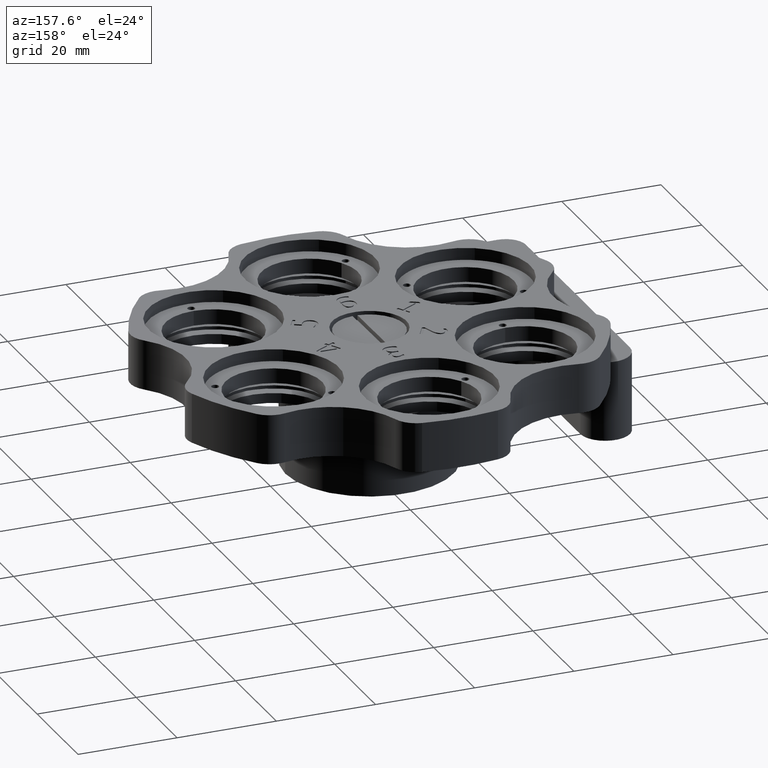
[diagram: clean part render]
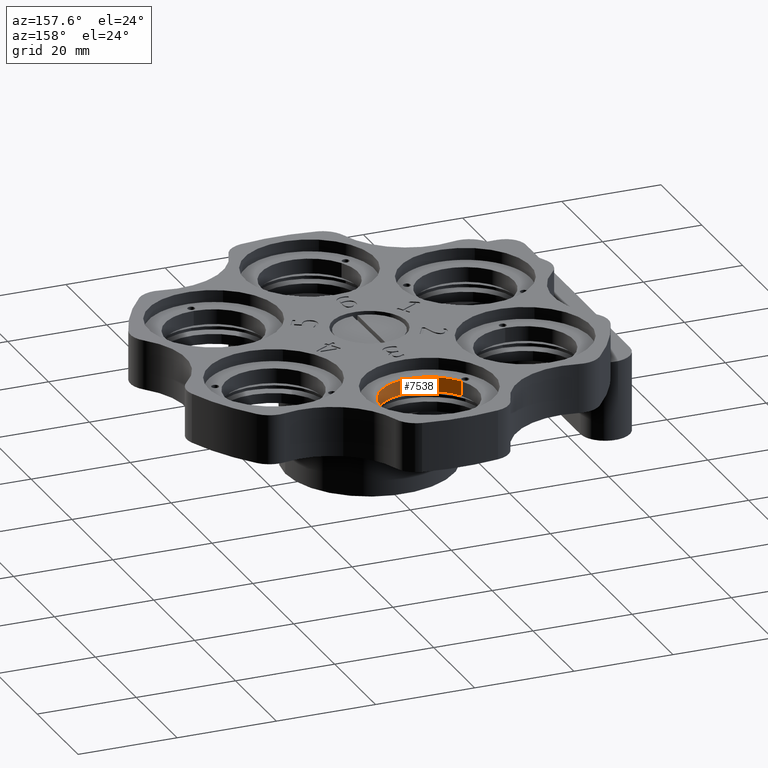
[diagram: same view with one face highlighted and labeled with its STEP entity id]
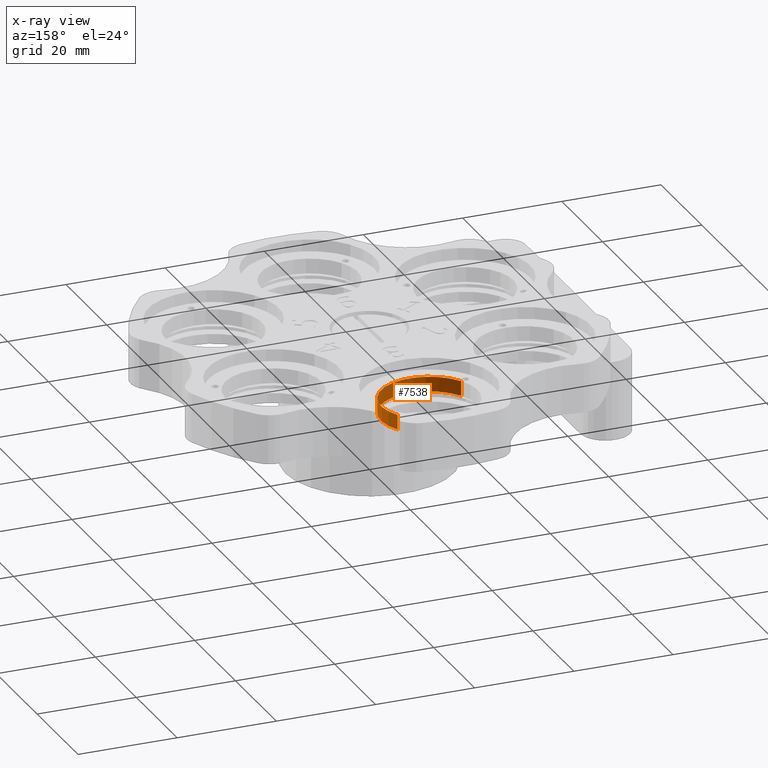
[diagram: x-ray of the same camera — body ghosted, the highlighted face saturated]
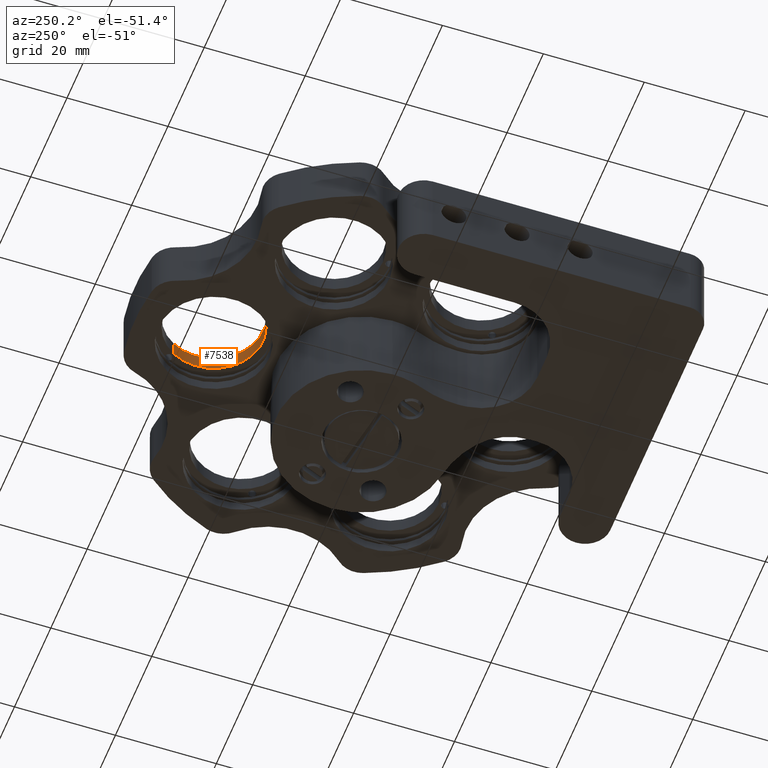
[diagram: same view with one face highlighted and labeled with its STEP entity id]
A machine part, auxiliary view. The second image highlights one B-rep face of the part: STEP entity #7538.
The next image is the same camera in x-ray: the body ghosted, the highlighted face saturated — about 0% of this face is hidden behind the body in this view.
A second angle (auxiliary view) of the same face is appended — the face is thin or edge-on in the first view.
In plain terms, the highlighted cylindrical surface (partial cylindrical patch) has radius 9.75 mm, axis along (-0, -0, -1).
Its self-contained STEP definition (entity closure, byte-faithful):
#389 = FACE_OUTER_BOUND ( 'NONE', #477, .T. ) ;
#477 = EDGE_LOOP ( 'NONE', ( #13623, #12243, #661, #2840 ) ) ;
#661 = ORIENTED_EDGE ( 'NONE', *, *, #11826, .F. ) ;
#666 = CARTESIAN_POINT ( 'NONE',  ( -4.676956828086179400E-013, 29.30000000000000100, 8.600000000000003200 ) ) ;
#1171 = LINE ( 'NONE', #8283, #7195 ) ;
#1963 = CIRCLE ( 'NONE', #9283, 9.750000000000016000 ) ;
#2035 = VERTEX_POINT ( 'NONE', #12610 ) ;
#2038 = AXIS2_PLACEMENT_3D ( 'NONE', #666, #13999, #5556 ) ;
#2046 = VECTOR ( 'NONE', #2735, 1000.000000000000000 ) ;
#2512 = AXIS2_PLACEMENT_3D ( 'NONE', #11267, #11378, #7731 ) ;
#2735 = DIRECTION ( 'NONE',  ( -1.060540212046021500E-016, -1.836909530733552100E-016, -1.000000000000000000 ) ) ;
#2840 = ORIENTED_EDGE ( 'NONE', *, *, #6527, .F. ) ;
#3550 = DIRECTION ( 'NONE',  ( 1.060540212046021500E-016, 1.836909530733552100E-016, 1.000000000000000000 ) ) ;
#4661 = DIRECTION ( 'NONE',  ( 0.8660254037844432600, 0.4999999999999917800, -1.779203565104414700E-016 ) ) ;
#5160 = EDGE_CURVE ( 'NONE', #12642, #14763, #1963, .T. ) ;
#5369 = EDGE_CURVE ( 'NONE', #14763, #2035, #8858, .T. ) ;
#5556 = DIRECTION ( 'NONE',  ( -0.8660254037844432600, -0.4999999999999917800, 1.779203565104414700E-016 ) ) ;
#6527 = EDGE_CURVE ( 'NONE', #12642, #13830, #1171, .T. ) ;
#7195 = VECTOR ( 'NONE', #9379, 1000.000000000000000 ) ;
#7538 = ADVANCED_FACE ( 'NONE', ( #389 ), #8312, .F. ) ;
#7731 = DIRECTION ( 'NONE',  ( 0.8660254037844432600, 0.4999999999999917800, -1.779203565104414700E-016 ) ) ;
#8283 = CARTESIAN_POINT ( 'NONE',  ( -8.443747686898802800, 24.42500000000007200, 8.600000000000005000 ) ) ;
#8312 = CYLINDRICAL_SURFACE ( 'NONE', #2038, 9.750000000000016000 ) ;
#8329 = CIRCLE ( 'NONE', #2512, 9.750000000000016000 ) ;
#8858 = LINE ( 'NONE', #14772, #2046 ) ;
#9283 = AXIS2_PLACEMENT_3D ( 'NONE', #15495, #3550, #4661 ) ;
#9379 = DIRECTION ( 'NONE',  ( -1.060540212046021500E-016, -1.836909530733552100E-016, -1.000000000000000000 ) ) ;
#10090 = CARTESIAN_POINT ( 'NONE',  ( -8.443747686898792200, 24.42500000000007900, 8.600000000000005000 ) ) ;
#10961 = CARTESIAN_POINT ( 'NONE',  ( 8.443747686897854300, 34.17499999999991900, 8.600000000000001400 ) ) ;
#11267 = CARTESIAN_POINT ( 'NONE',  ( -4.695161594709689100E-013, 29.30000000000000100, 5.600000000000002300 ) ) ;
#11378 = DIRECTION ( 'NONE',  ( 1.060540212046021500E-016, 1.836909530733552100E-016, 1.000000000000000000 ) ) ;
#11826 = EDGE_CURVE ( 'NONE', #13830, #2035, #8329, .T. ) ;
#12243 = ORIENTED_EDGE ( 'NONE', *, *, #5369, .T. ) ;
#12610 = CARTESIAN_POINT ( 'NONE',  ( 8.443747686897854300, 34.17499999999991900, 5.600000000000000500 ) ) ;
#12642 = VERTEX_POINT ( 'NONE', #10090 ) ;
#13623 = ORIENTED_EDGE ( 'NONE', *, *, #5160, .T. ) ;
#13830 = VERTEX_POINT ( 'NONE', #15596 ) ;
#13999 = DIRECTION ( 'NONE',  ( -1.060540212046021500E-016, -1.836909530733552100E-016, -1.000000000000000000 ) ) ;
#14763 = VERTEX_POINT ( 'NONE', #10961 ) ;
#14772 = CARTESIAN_POINT ( 'NONE',  ( 8.443747686897864900, 34.17499999999992600, 8.600000000000001400 ) ) ;
#15495 = CARTESIAN_POINT ( 'NONE',  ( -4.676956828086179400E-013, 29.30000000000000100, 8.600000000000003200 ) ) ;
#15596 = CARTESIAN_POINT ( 'NONE',  ( -8.443747686898792200, 24.42500000000007900, 5.600000000000004100 ) ) ;